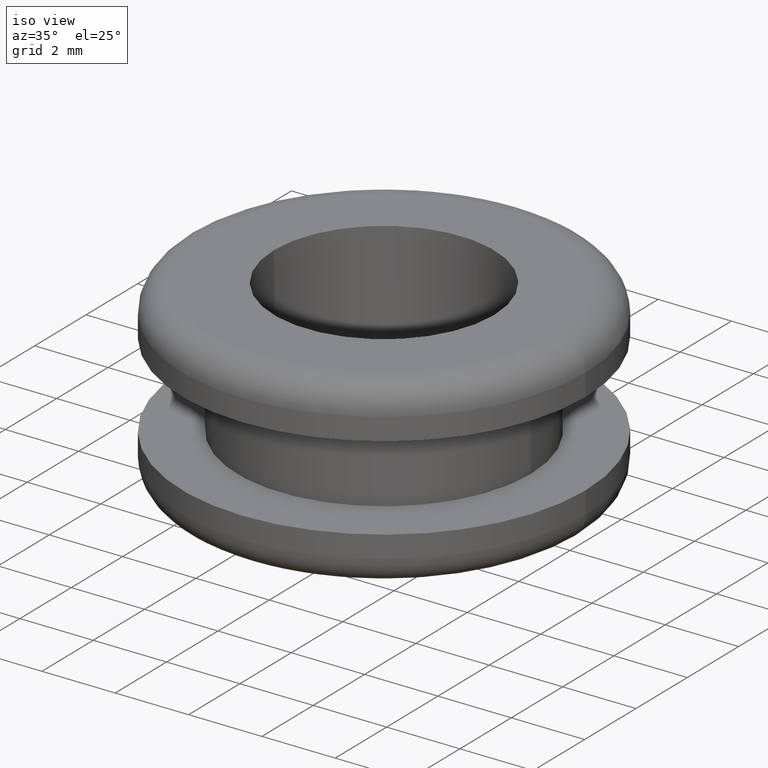
[diagram: clean part render]
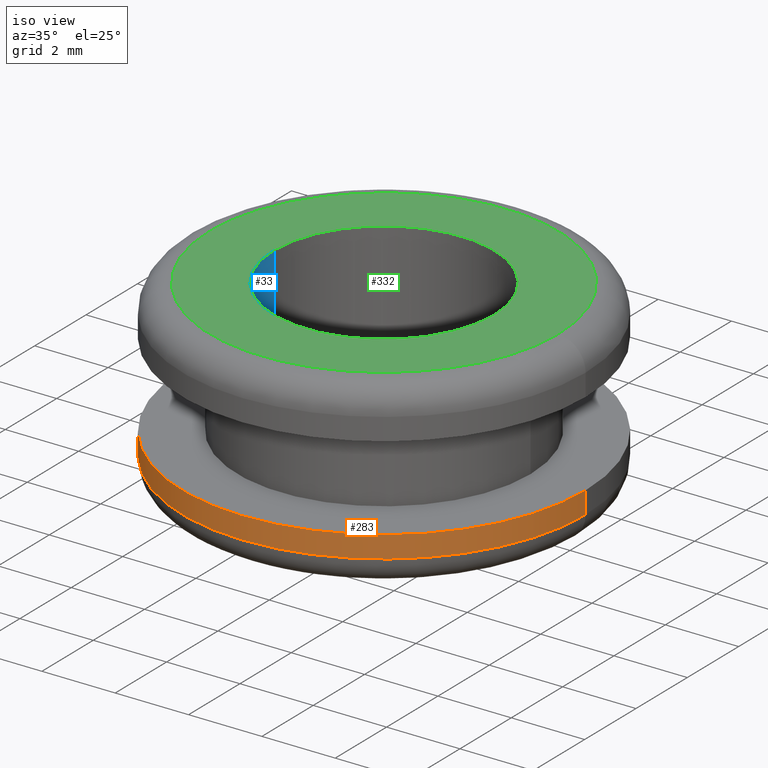
[diagram: same view with three faces highlighted in distinct colors, each labeled with its STEP entity id]
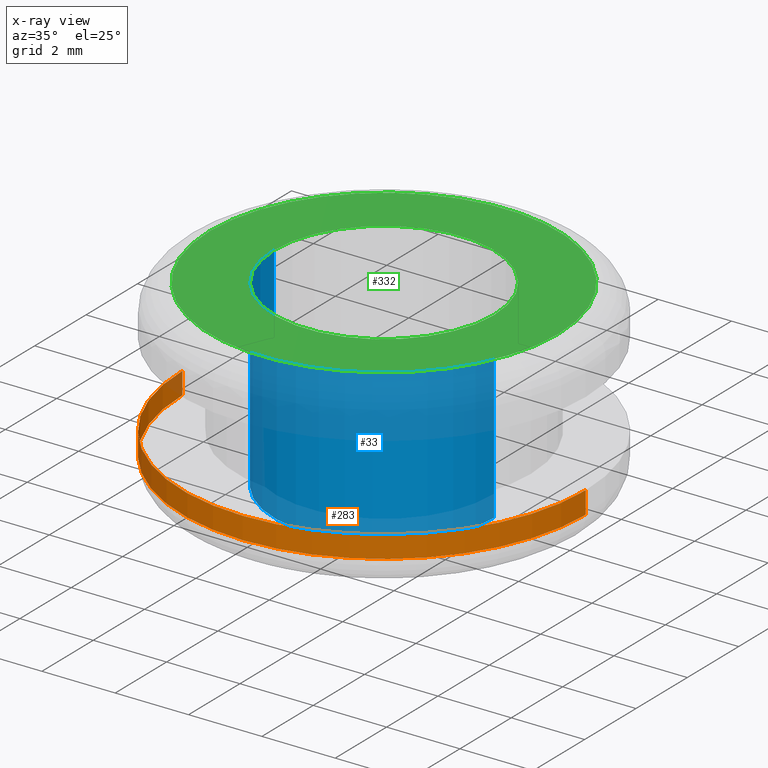
[diagram: x-ray of the same camera — body ghosted, the three highlighted faces saturated]
A machine part, iso view with three faces highlighted in distinct colors.
The next image is the same camera in x-ray (body ghosted, the three faces saturated) — at least one of them is partly hidden behind the body in this view.
Their STEP definitions:

[orange] entity #283 — the highlighted cylindrical surface (partial cylindrical patch) has radius 5.5 mm, axis along (0, 0, -1).
#8 = VERTEX_POINT ( 'NONE', #103 ) ;
#26 = CARTESIAN_POINT ( 'NONE',  ( 103.4281270166739500, 0.0000000000000000000, 0.0000000000000000000 ) ) ;
#34 = EDGE_CURVE ( 'NONE', #268, #8, #179, .T. ) ;
#36 = ORIENTED_EDGE ( 'NONE', *, *, #453, .F. ) ;
#103 = CARTESIAN_POINT ( 'NONE',  ( 114.4281270167288900, 6.735557395344127400E-016, 134.3334774696090200 ) ) ;
#109 = CIRCLE ( 'NONE', #274, 5.500000000027497100 ) ;
#123 = EDGE_CURVE ( 'NONE', #260, #198, #428, .T. ) ;
#127 = CARTESIAN_POINT ( 'NONE',  ( 108.9281270167014100, 0.0000000000000000000, 134.3334774696090200 ) ) ;
#136 = CARTESIAN_POINT ( 'NONE',  ( 103.4281270166739100, 0.0000000000000000000, 134.3334774696090200 ) ) ;
#141 = DIRECTION ( 'NONE',  ( 0.0000000000000000000, 0.0000000000000000000, -1.000000000000000000 ) ) ;
#167 = DIRECTION ( 'NONE',  ( 0.0000000000000000000, 0.0000000000000000000, -1.000000000000000000 ) ) ;
#179 = LINE ( 'NONE', #430, #376 ) ;
#182 = ORIENTED_EDGE ( 'NONE', *, *, #34, .F. ) ;
#187 = CIRCLE ( 'NONE', #352, 5.500000000027399400 ) ;
#198 = VERTEX_POINT ( 'NONE', #136 ) ;
#209 = ORIENTED_EDGE ( 'NONE', *, *, #478, .T. ) ;
#221 = CARTESIAN_POINT ( 'NONE',  ( 108.9281270167014100, 0.0000000000000000000, 0.0000000000000000000 ) ) ;
#227 = VECTOR ( 'NONE', #269, 1000.000000000000000 ) ;
#247 = CARTESIAN_POINT ( 'NONE',  ( 114.4281270167288100, 6.735557395344025800E-016, 134.9334774696090200 ) ) ;
#260 = VERTEX_POINT ( 'NONE', #405 ) ;
#268 = VERTEX_POINT ( 'NONE', #247 ) ;
#269 = DIRECTION ( 'NONE',  ( 0.0000000000000000000, 0.0000000000000000000, -1.000000000000000000 ) ) ;
#273 = DIRECTION ( 'NONE',  ( -1.000000000000000000, 0.0000000000000000000, 0.0000000000000000000 ) ) ;
#274 = AXIS2_PLACEMENT_3D ( 'NONE', #127, #418, #383 ) ;
#283 = ADVANCED_FACE ( 'NONE', ( #407 ), #380, .T. ) ;
#303 = ORIENTED_EDGE ( 'NONE', *, *, #123, .T. ) ;
#324 = DIRECTION ( 'NONE',  ( -1.000000000000000000, 0.0000000000000000000, 0.0000000000000000000 ) ) ;
#327 = DIRECTION ( 'NONE',  ( 0.0000000000000000000, 0.0000000000000000000, -1.000000000000000000 ) ) ;
#339 = CARTESIAN_POINT ( 'NONE',  ( 108.9281270167014100, 0.0000000000000000000, 134.9334774696090200 ) ) ;
#340 = AXIS2_PLACEMENT_3D ( 'NONE', #221, #141, #324 ) ;
#352 = AXIS2_PLACEMENT_3D ( 'NONE', #339, #327, #273 ) ;
#376 = VECTOR ( 'NONE', #167, 1000.000000000000000 ) ;
#380 = CYLINDRICAL_SURFACE ( 'NONE', #340, 5.500000000027455400 ) ;
#383 = DIRECTION ( 'NONE',  ( -1.000000000000000000, 0.0000000000000000000, 0.0000000000000000000 ) ) ;
#405 = CARTESIAN_POINT ( 'NONE',  ( 103.4281270166740000, 0.0000000000000000000, 134.9334774696090200 ) ) ;
#407 = FACE_OUTER_BOUND ( 'NONE', #447, .T. ) ;
#418 = DIRECTION ( 'NONE',  ( 0.0000000000000000000, 0.0000000000000000000, -1.000000000000000000 ) ) ;
#428 = LINE ( 'NONE', #26, #227 ) ;
#430 = CARTESIAN_POINT ( 'NONE',  ( 114.4281270167288700, 6.735557395344059300E-016, 0.0000000000000000000 ) ) ;
#447 = EDGE_LOOP ( 'NONE', ( #182, #209, #303, #36 ) ) ;
#453 = EDGE_CURVE ( 'NONE', #8, #198, #109, .T. ) ;
#478 = EDGE_CURVE ( 'NONE', #268, #260, #187, .T. ) ;

[blue] entity #33 — the highlighted cylindrical surface (partial cylindrical patch) has radius 3 mm, axis along (0, 0, -1).
#22 = VERTEX_POINT ( 'NONE', #210 ) ;
#31 = CARTESIAN_POINT ( 'NONE',  ( 105.9281270166740100, 0.0000000000000000000, 0.0000000000000000000 ) ) ;
#33 = ADVANCED_FACE ( 'NONE', ( #92 ), #465, .F. ) ;
#37 = DIRECTION ( 'NONE',  ( -1.000000000000000000, 0.0000000000000000000, 0.0000000000000000000 ) ) ;
#48 = EDGE_CURVE ( 'NONE', #389, #456, #256, .T. ) ;
#52 = DIRECTION ( 'NONE',  ( 0.0000000000000000000, 0.0000000000000000000, -1.000000000000000000 ) ) ;
#67 = EDGE_CURVE ( 'NONE', #22, #369, #70, .T. ) ;
#70 = LINE ( 'NONE', #31, #248 ) ;
#92 = FACE_OUTER_BOUND ( 'NONE', #296, .T. ) ;
#114 = AXIS2_PLACEMENT_3D ( 'NONE', #162, #52, #290 ) ;
#145 = ORIENTED_EDGE ( 'NONE', *, *, #423, .F. ) ;
#161 = AXIS2_PLACEMENT_3D ( 'NONE', #258, #404, #37 ) ;
#162 = CARTESIAN_POINT ( 'NONE',  ( 108.9281270167014100, 0.0000000000000000000, 133.5834774696090200 ) ) ;
#193 = ORIENTED_EDGE ( 'NONE', *, *, #67, .F. ) ;
#210 = CARTESIAN_POINT ( 'NONE',  ( 105.9281270166740100, 0.0000000000000000000, 138.5834774696089900 ) ) ;
#223 = CARTESIAN_POINT ( 'NONE',  ( 108.9281270167014100, 0.0000000000000000000, 0.0000000000000000000 ) ) ;
#237 = CARTESIAN_POINT ( 'NONE',  ( 111.9281270167287900, 3.673940397475615100E-016, 0.0000000000000000000 ) ) ;
#248 = VECTOR ( 'NONE', #275, 1000.000000000000000 ) ;
#253 = CIRCLE ( 'NONE', #114, 3.000000000027397600 ) ;
#256 = LINE ( 'NONE', #237, #454 ) ;
#258 = CARTESIAN_POINT ( 'NONE',  ( 108.9281270167014100, 0.0000000000000000000, 138.5834774696089900 ) ) ;
#270 = CARTESIAN_POINT ( 'NONE',  ( 105.9281270166740100, 0.0000000000000000000, 133.5834774696090200 ) ) ;
#275 = DIRECTION ( 'NONE',  ( 0.0000000000000000000, 0.0000000000000000000, -1.000000000000000000 ) ) ;
#277 = DIRECTION ( 'NONE',  ( 0.0000000000000000000, 0.0000000000000000000, -1.000000000000000000 ) ) ;
#290 = DIRECTION ( 'NONE',  ( -1.000000000000000000, 0.0000000000000000000, 0.0000000000000000000 ) ) ;
#296 = EDGE_LOOP ( 'NONE', ( #145, #401, #337, #193 ) ) ;
#315 = DIRECTION ( 'NONE',  ( 0.0000000000000000000, 0.0000000000000000000, -1.000000000000000000 ) ) ;
#321 = AXIS2_PLACEMENT_3D ( 'NONE', #223, #277, #355 ) ;
#337 = ORIENTED_EDGE ( 'NONE', *, *, #381, .T. ) ;
#341 = CIRCLE ( 'NONE', #161, 3.000000000027397600 ) ;
#355 = DIRECTION ( 'NONE',  ( -1.000000000000000000, 0.0000000000000000000, 0.0000000000000000000 ) ) ;
#369 = VERTEX_POINT ( 'NONE', #270 ) ;
#381 = EDGE_CURVE ( 'NONE', #456, #369, #253, .T. ) ;
#384 = CARTESIAN_POINT ( 'NONE',  ( 111.9281270167287900, 3.673940397475618500E-016, 133.5834774696090200 ) ) ;
#389 = VERTEX_POINT ( 'NONE', #415 ) ;
#401 = ORIENTED_EDGE ( 'NONE', *, *, #48, .T. ) ;
#404 = DIRECTION ( 'NONE',  ( 0.0000000000000000000, 0.0000000000000000000, -1.000000000000000000 ) ) ;
#415 = CARTESIAN_POINT ( 'NONE',  ( 111.9281270167287900, 3.673940397475618500E-016, 138.5834774696089900 ) ) ;
#423 = EDGE_CURVE ( 'NONE', #389, #22, #341, .T. ) ;
#454 = VECTOR ( 'NONE', #315, 1000.000000000000000 ) ;
#456 = VERTEX_POINT ( 'NONE', #384 ) ;
#465 = CYLINDRICAL_SURFACE ( 'NONE', #321, 3.000000000027397600 ) ;

[green] entity #332 — the highlighted planar face has unit normal (0, 0, 1).
#1 = DIRECTION ( 'NONE',  ( 1.000000000000000000, 0.0000000000000000000, 0.0000000000000000000 ) ) ;
#22 = VERTEX_POINT ( 'NONE', #210 ) ;
#37 = DIRECTION ( 'NONE',  ( -1.000000000000000000, 0.0000000000000000000, 0.0000000000000000000 ) ) ;
#58 = CARTESIAN_POINT ( 'NONE',  ( 108.9281270167014100, 0.0000000000000000000, 138.5834774696089900 ) ) ;
#64 = PLANE ( 'NONE',  #474 ) ;
#74 = AXIS2_PLACEMENT_3D ( 'NONE', #142, #364, #284 ) ;
#78 = ORIENTED_EDGE ( 'NONE', *, *, #151, .F. ) ;
#86 = CARTESIAN_POINT ( 'NONE',  ( 113.6781270167288900, 6.276314845663863700E-016, 138.5834774696089900 ) ) ;
#112 = CIRCLE ( 'NONE', #261, 4.750000000027496200 ) ;
#122 = CARTESIAN_POINT ( 'NONE',  ( 113.6781270167289900, 0.0000000000000000000, 138.5834774696089900 ) ) ;
#142 = CARTESIAN_POINT ( 'NONE',  ( 108.9281270167014100, 0.0000000000000000000, 138.5834774696089900 ) ) ;
#144 = ORIENTED_EDGE ( 'NONE', *, *, #280, .F. ) ;
#151 = EDGE_CURVE ( 'NONE', #365, #360, #224, .T. ) ;
#153 = EDGE_LOOP ( 'NONE', ( #78, #144 ) ) ;
#161 = AXIS2_PLACEMENT_3D ( 'NONE', #258, #404, #37 ) ;
#177 = CARTESIAN_POINT ( 'NONE',  ( 108.9281270167014100, 0.0000000000000000000, 138.5834774696089900 ) ) ;
#191 = FACE_OUTER_BOUND ( 'NONE', #153, .T. ) ;
#210 = CARTESIAN_POINT ( 'NONE',  ( 105.9281270166740100, 0.0000000000000000000, 138.5834774696089900 ) ) ;
#215 = DIRECTION ( 'NONE',  ( 0.0000000000000000000, 0.0000000000000000000, -1.000000000000000000 ) ) ;
#224 = CIRCLE ( 'NONE', #74, 4.750000000027496200 ) ;
#246 = DIRECTION ( 'NONE',  ( -1.000000000000000000, 0.0000000000000000000, 0.0000000000000000000 ) ) ;
#258 = CARTESIAN_POINT ( 'NONE',  ( 108.9281270167014100, 0.0000000000000000000, 138.5834774696089900 ) ) ;
#261 = AXIS2_PLACEMENT_3D ( 'NONE', #177, #215, #363 ) ;
#267 = DIRECTION ( 'NONE',  ( 0.0000000000000000000, 0.0000000000000000000, 1.000000000000000000 ) ) ;
#276 = CARTESIAN_POINT ( 'NONE',  ( 104.1781270166739100, 0.0000000000000000000, 138.5834774696089900 ) ) ;
#280 = EDGE_CURVE ( 'NONE', #360, #365, #112, .T. ) ;
#284 = DIRECTION ( 'NONE',  ( -1.000000000000000000, 0.0000000000000000000, 0.0000000000000000000 ) ) ;
#332 = ADVANCED_FACE ( 'NONE', ( #371, #191 ), #64, .T. ) ;
#333 = EDGE_CURVE ( 'NONE', #22, #389, #458, .T. ) ;
#341 = CIRCLE ( 'NONE', #161, 3.000000000027397600 ) ;
#360 = VERTEX_POINT ( 'NONE', #86 ) ;
#363 = DIRECTION ( 'NONE',  ( -1.000000000000000000, 0.0000000000000000000, 0.0000000000000000000 ) ) ;
#364 = DIRECTION ( 'NONE',  ( 0.0000000000000000000, 0.0000000000000000000, -1.000000000000000000 ) ) ;
#365 = VERTEX_POINT ( 'NONE', #276 ) ;
#371 = FACE_BOUND ( 'NONE', #391, .T. ) ;
#389 = VERTEX_POINT ( 'NONE', #415 ) ;
#391 = EDGE_LOOP ( 'NONE', ( #460, #439 ) ) ;
#404 = DIRECTION ( 'NONE',  ( 0.0000000000000000000, 0.0000000000000000000, -1.000000000000000000 ) ) ;
#415 = CARTESIAN_POINT ( 'NONE',  ( 111.9281270167287900, 3.673940397475618500E-016, 138.5834774696089900 ) ) ;
#422 = DIRECTION ( 'NONE',  ( 0.0000000000000000000, 0.0000000000000000000, -1.000000000000000000 ) ) ;
#423 = EDGE_CURVE ( 'NONE', #389, #22, #341, .T. ) ;
#439 = ORIENTED_EDGE ( 'NONE', *, *, #423, .T. ) ;
#451 = AXIS2_PLACEMENT_3D ( 'NONE', #58, #422, #246 ) ;
#458 = CIRCLE ( 'NONE', #451, 3.000000000027397600 ) ;
#460 = ORIENTED_EDGE ( 'NONE', *, *, #333, .T. ) ;
#474 = AXIS2_PLACEMENT_3D ( 'NONE', #122, #267, #1 ) ;